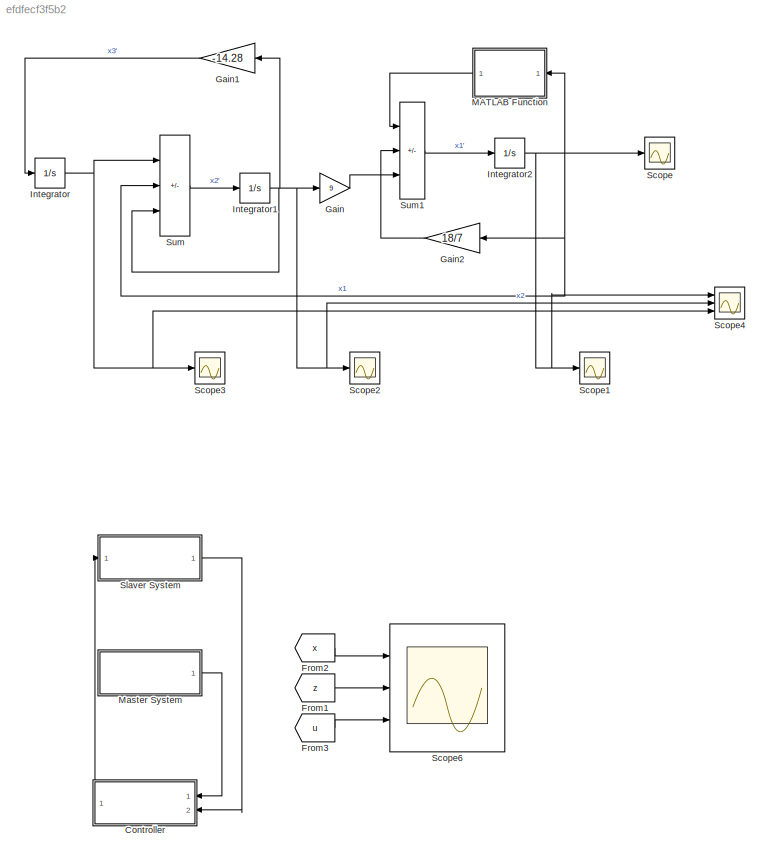
MODEL slx_efdfecf3f5b2
KIND model
CONFIG AbsTol = auto
CONFIG EnableMultiTasking = off
CONFIG FixedStep = auto
CONFIG MaxStep = auto
CONFIG MinStep = auto
CONFIG RelTol = 1e-3
CONFIG SampleTimeConstraint = Unconstrained
CONFIG SolverName = VariableStepAuto
CONFIG StartTime = 0.0
CONFIG StopTime = 50
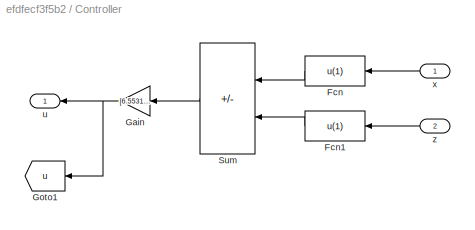
BLOCK [SubSystem] Controller
  NameLocation = top
  Ports = [2, 1]
  RequestExecContextInheritance = off
BLOCK [Fcn] Controller/Fcn
  Expr = u(1)
  NameLocation = top
BLOCK [Fcn] Controller/Fcn1
  Expr = u(1)
  NameLocation = top
BLOCK [Gain] Controller/Gain
  Gain = [6.5531;1.4395;-0.5402]
  Multiplication = Matrix(K*u)
  NameLocation = top
BLOCK [Goto] Controller/Goto1
  GotoTag = u
  IconDisplay = Signal name
  NameLocation = top
  TagVisibility = global
BLOCK [Sum] Controller/Sum
  IconShape = rectangular
  Inputs = +-
  NameLocation = top
  Ports = [2, 1]
BLOCK [Outport] Controller/u
  NameLocation = top
BLOCK [Inport] Controller/x
  NameLocation = top
BLOCK [Inport] Controller/z
  NameLocation = top
  Port = 2
BLOCK [From] From1
  GotoTag = z
  IconDisplay = Signal name
  TagVisibility = global
BLOCK [From] From2
  GotoTag = x
  IconDisplay = Signal name
  TagVisibility = global
BLOCK [From] From3
  GotoTag = u
  IconDisplay = Signal name
  TagVisibility = global
BLOCK [Gain] Gain
  Gain = 9
BLOCK [Gain] Gain1
  Gain = -14.28
  NameLocation = top
BLOCK [Gain] Gain2
  Gain = 18/7
  NameLocation = top
BLOCK [Integrator] Integrator
  InitialCondition = 0.2
  Ports = [1, 1]
BLOCK [Integrator] Integrator1
  InitialCondition = 0.1
  Ports = [1, 1]
BLOCK [Integrator] Integrator2
  InitialCondition = -0.1
  Ports = [1, 1]
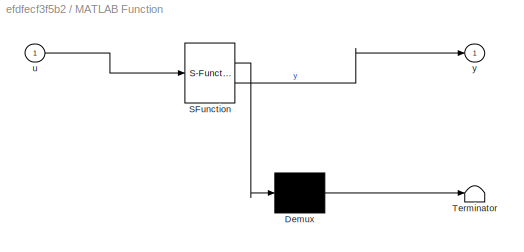
BLOCK [SubSystem] MATLAB Function
  ErrorFcn = Stateflow.Translate.translate
  NameLocation = top
  PermitHierarchicalResolution = ExplicitOnly
  Ports = [1, 1]
  RequestExecContextInheritance = off
  SFBlockType = MATLAB Function
  TreatAsAtomicUnit = on
BLOCK [Demux] MATLAB Function/ Demux 
  Outputs = 1
  Ports = [1, 1]
BLOCK [S-Function] MATLAB Function/ SFunction 
  EnableBusSupport = on
  FunctionName = sf_sfun
  PortCounts = [1 2]
  Ports = [1, 2]
  SFcnIsStateOwnerBlock = off
  SFunctionDeploymentMode = off
  Tag = Stateflow S-Function 2
BLOCK [Terminator] MATLAB Function/ Terminator 
BLOCK [Inport] MATLAB Function/u
BLOCK [Outport] MATLAB Function/y
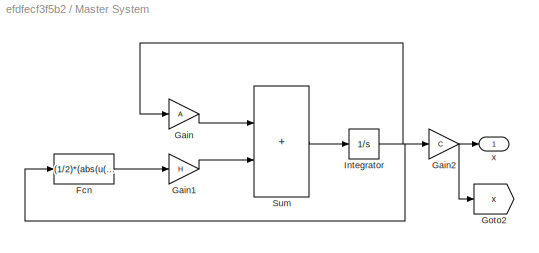
BLOCK [SubSystem] Master System
  Ports = [0, 1]
  RequestExecContextInheritance = off
BLOCK [Fcn] Master System/Fcn
  Expr = (1/2)*(abs(u(1)+1)-abs(u(1)-1))
BLOCK [Gain] Master System/Gain
  Gain = A
  Multiplication = Matrix(K*u)
BLOCK [Gain] Master System/Gain1
  Gain = H
  Multiplication = Matrix(K*u)
BLOCK [Gain] Master System/Gain2
  Gain = C
  Multiplication = Matrix(K*u)
BLOCK [Goto] Master System/Goto2
  GotoTag = x
  IconDisplay = Signal name
  TagVisibility = global
BLOCK [Integrator] Master System/Integrator
  InitialCondition = [-0.2;0.3;0.7]
  Ports = [1, 1]
BLOCK [Sum] Master System/Sum
  IconShape = rectangular
  Ports = [2, 1]
BLOCK [Outport] Master System/x
BLOCK [Scope] Scope
  Floating = off
  NumInputPorts = 1
  Ports = [1]
  ScopeSpecificationString = Simulink.scopes.TimeScopeBlockCfg('CurrentConfiguration', extmgr.ConfigurationSet(extmgr.Configuration('Core','General UI',true,'FigureColor',[1 1 1]),extmgr.Configuration('Core','Source UI',true),extmgr.Configuration('Sources','WiredSimulink',true,'DataLogging',true,'DataLoggingVariableName','ScopeData1','DataLoggingSaveFormat','StructureWithTime'),extmgr.Configuration('Visuals','Time Domain',tru...<+1595ch>
BLOCK [Scope] Scope1
  Floating = off
  NumInputPorts = 1
  Ports = [1]
  ScopeSpecificationString = Simulink.scopes.TimeScopeBlockCfg('CurrentConfiguration', extmgr.ConfigurationSet(extmgr.Configuration('Core','General UI',true,'FigureColor',[1 1 1]),extmgr.Configuration('Core','Source UI',true),extmgr.Configuration('Sources','WiredSimulink',true,'DataLogging',true,'DataLoggingVariableName','ScopeData2','DataLoggingSaveFormat','StructureWithTime'),extmgr.Configuration('Visuals','Time Domain',tru...<+1672ch>
BLOCK [Scope] Scope2
  Floating = off
  NumInputPorts = 1
  Ports = [1]
  ScopeSpecificationString = Simulink.scopes.TimeScopeBlockCfg('CurrentConfiguration', extmgr.ConfigurationSet(extmgr.Configuration('Core','General UI',true,'FigureColor',[1 1 1]),extmgr.Configuration('Core','Source UI',true),extmgr.Configuration('Sources','WiredSimulink',true,'DataLogging',true,'DataLoggingVariableName','ScopeData3','DataLoggingSaveFormat','StructureWithTime'),extmgr.Configuration('Visuals','Time Domain',tru...<+1672ch>
BLOCK [Scope] Scope3
  Floating = off
  NumInputPorts = 1
  Ports = [1]
  ScopeSpecificationString = Simulink.scopes.TimeScopeBlockCfg('CurrentConfiguration', extmgr.ConfigurationSet(extmgr.Configuration('Core','General UI',true,'FigureColor',[1 1 1]),extmgr.Configuration('Core','Source UI',true),extmgr.Configuration('Sources','WiredSimulink',true,'DataLogging',true,'DataLoggingSaveFormat','StructureWithTime'),extmgr.Configuration('Visuals','Time Domain',true,'SerializedDisplays',{struct('MinYLim...<+1641ch>
BLOCK [Scope] Scope4
  Floating = off
  NumInputPorts = 3
  Ports = [3]
  ScopeSpecificationString = Simulink.scopes.TimeScopeBlockCfg('CurrentConfiguration', extmgr.ConfigurationSet(extmgr.Configuration('Core','General UI',true,'FigureColor',[1 1 1]),extmgr.Configuration('Core','Source UI',true),extmgr.Configuration('Sources','WiredSimulink',true,'DataLogging',true,'DataLoggingVariableName','ScopeData4','DataLoggingSaveFormat','StructureWithTime'),extmgr.Configuration('Visuals','Time Domain',tru...<+1866ch>
BLOCK [Scope] Scope6
  Floating = off
  NumInputPorts = 3
  Ports = [3]
  ScopeSpecificationString = Simulink.scopes.TimeScopeBlockCfg('CurrentConfiguration', extmgr.ConfigurationSet(extmgr.Configuration('Core','General UI',true,'FigureColor',[1 1 1]),extmgr.Configuration('Core','Source UI',true),extmgr.Configuration('Sources','WiredSimulink',true,'DataLoggingVariableName','ScopeData22','DataLogging',true,'DataLoggingSaveFormat','StructureWithTime'),extmgr.Configuration('Visuals','Time Domain',tr...<+4046ch>
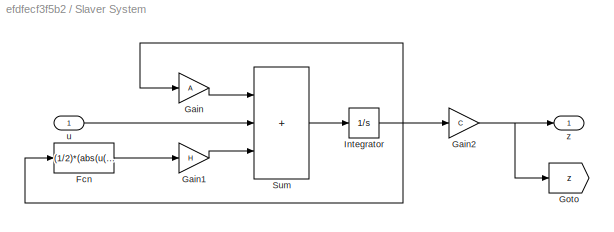
BLOCK [SubSystem] Slaver System
  Ports = [1, 1]
  RequestExecContextInheritance = off
BLOCK [Fcn] Slaver System/Fcn
  Expr = (1/2)*(abs(u(1)+1)-abs(u(1)-1))
BLOCK [Gain] Slaver System/Gain
  Gain = A
  Multiplication = Matrix(K*u)
BLOCK [Gain] Slaver System/Gain1
  Gain = H
  Multiplication = Matrix(K*u)
BLOCK [Gain] Slaver System/Gain2
  Gain = C
  Multiplication = Matrix(K*u)
BLOCK [Goto] Slaver System/Goto
  GotoTag = z
  IconDisplay = Signal name
  TagVisibility = global
BLOCK [Integrator] Slaver System/Integrator
  InitialCondition = [0.2;0.3;0.7]
  Ports = [1, 1]
BLOCK [Sum] Slaver System/Sum
  IconShape = rectangular
  Inputs = +++
  Ports = [3, 1]
BLOCK [Inport] Slaver System/u
BLOCK [Outport] Slaver System/z
BLOCK [Sum] Sum
  IconShape = rectangular
  Inputs = |++-
  Ports = [3, 1]
BLOCK [Sum] Sum1
  IconShape = rectangular
  Inputs = |+-+
  Ports = [3, 1]
LINE Controller/Fcn1:1 -> Controller/Sum:2
LINE Controller/Fcn:1 -> Controller/Sum:1
NET Controller/Gain:1 -> Controller/Goto1:1, Controller/u:1
LINE Controller/Sum:1 -> Controller/Gain:1
LINE Controller/x:1 -> Controller/Fcn:1
LINE Controller/z:1 -> Controller/Fcn1:1
LINE Controller:1 -> Slaver System:1
LINE From1:1 -> Scope6:2
LINE From2:1 -> Scope6:1
LINE From3:1 -> Scope6:3
LINE Gain1:1 -> Integrator:1
LINE Gain2:1 -> Sum1:2
LINE Gain:1 -> Sum1:3
NET Integrator1:1 -> Gain1:1, Gain:1, Scope2:1, Scope4:2, Sum:3
NET Integrator2:1 -> Gain2:1, MATLAB Function:1, Scope1:1, Scope4:1, Scope:1, Sum:2
NET Integrator:1 -> Scope3:1, Scope4:3, Sum:1
LINE MATLAB Function:1 -> Sum1:1
LINE Master System/Fcn:1 -> Master System/Gain1:1
LINE Master System/Gain1:1 -> Master System/Sum:2
NET Master System/Gain2:1 -> Master System/Goto2:1, Master System/x:1
LINE Master System/Gain:1 -> Master System/Sum:1
NET Master System/Integrator:1 -> Master System/Fcn:1, Master System/Gain2:1, Master System/Gain:1
LINE Master System/Sum:1 -> Master System/Integrator:1
LINE Master System:1 -> Controller:1
LINE Slaver System/Fcn:1 -> Slaver System/Gain1:1
LINE Slaver System/Gain1:1 -> Slaver System/Sum:3
NET Slaver System/Gain2:1 -> Slaver System/Goto:1, Slaver System/z:1
LINE Slaver System/Gain:1 -> Slaver System/Sum:1
NET Slaver System/Integrator:1 -> Slaver System/Fcn:1, Slaver System/Gain2:1, Slaver System/Gain:1
LINE Slaver System/Sum:1 -> Slaver System/Integrator:1
LINE Slaver System/u:1 -> Slaver System/Sum:2
LINE Slaver System:1 -> Controller:2
LINE Sum1:1 -> Integrator2:1
LINE Sum:1 -> Integrator1:1
note: NET lines group one-source signal fan-out (src -> all destinations, sorted); 1:1 wires keep LINE
CHART MATLAB Function states=1 transitions=1
  STATE_LABEL 'eML_blk_kernel()'
  STATE_LABEL 'SCRIPT:\nfunction y = fcn(u)\n\ny = 9*3/14*(abs(u+1)-abs(u-1));\n'
CHART  states=0 transitions=0
